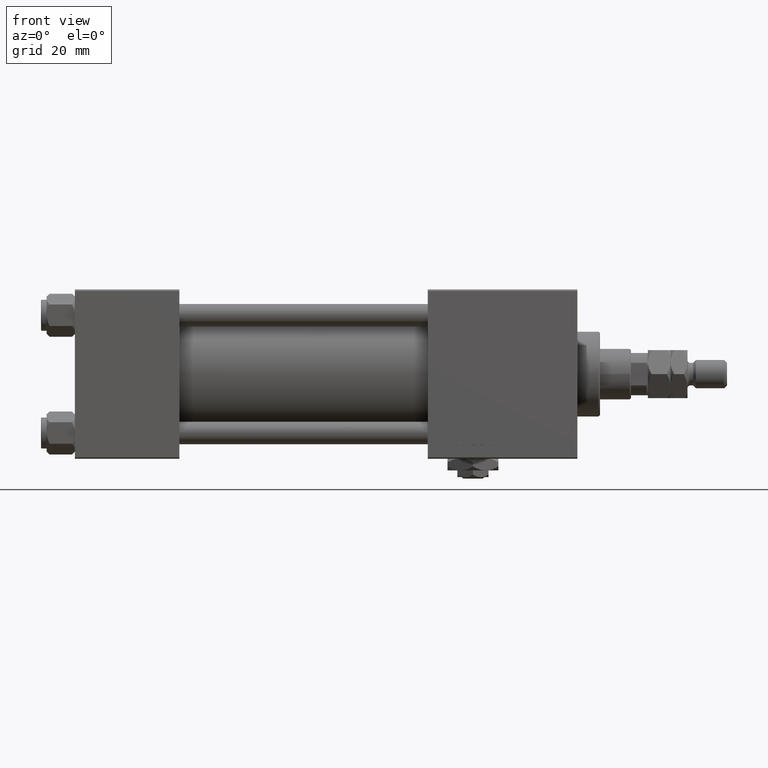
[diagram: clean part render]
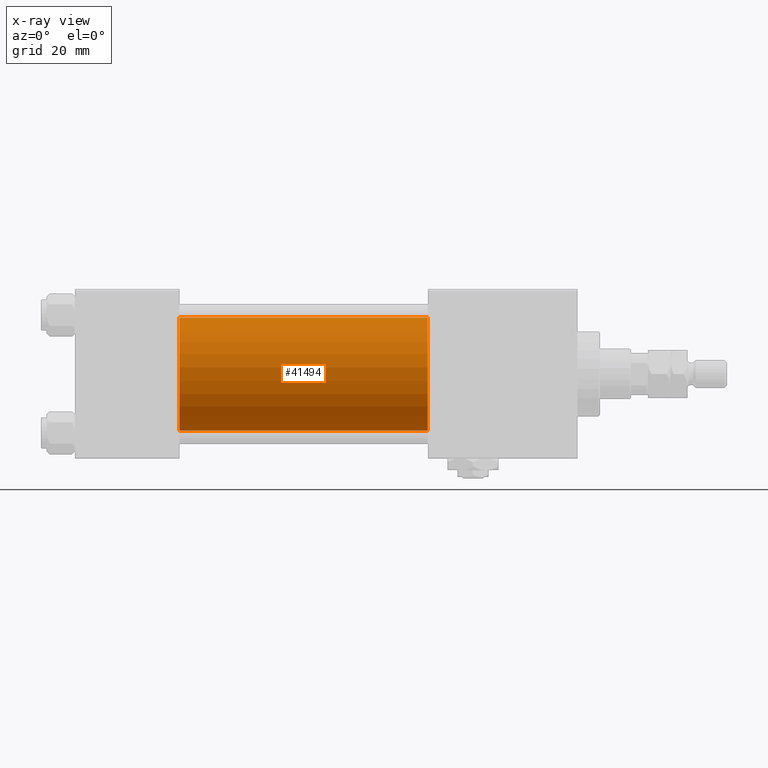
[diagram: x-ray — body ghosted, one internal face saturated and labeled with its STEP entity id]
A machine part, front view, then the same camera in x-ray: the body is ghosted and one INTERNAL B-rep face — a face not visible from any outside direction — is saturated and labeled: STEP entity #41494.
In plain terms, the highlighted cylindrical surface (partial cylindrical patch) has radius 20 mm, axis along (-1, -0, -0).
Its self-contained STEP definition (entity closure, byte-faithful):
#86 = CARTESIAN_POINT ( 'NONE',  ( 37.00000000000000000, -2.602085213965210642E-15, 20.00000000000000000 ) ) ;
#213 = EDGE_CURVE ( 'NONE', #16477, #53492, #29205, .T. ) ;
#674 = FACE_OUTER_BOUND ( 'NONE', #44099, .T. ) ;
#2368 = DIRECTION ( 'NONE',  ( 0.000000000000000000, 0.000000000000000000, -1.000000000000000000 ) ) ;
#3436 = DIRECTION ( 'NONE',  ( 1.000000000000000000, 0.000000000000000000, 0.000000000000000000 ) ) ;
#4060 = DIRECTION ( 'NONE',  ( -1.000000000000000000, -0.000000000000000000, -0.000000000000000000 ) ) ;
#5092 = VECTOR ( 'NONE', #14815, 1000.000000000000000 ) ;
#6915 = VERTEX_POINT ( 'NONE', #13218 ) ;
#9227 = VECTOR ( 'NONE', #4060, 1000.000000000000000 ) ;
#9318 = ORIENTED_EDGE ( 'NONE', *, *, #34437, .F. ) ;
#9572 = CIRCLE ( 'NONE', #17341, 20.00000000000000000 ) ;
#12014 = LINE ( 'NONE', #15078, #5092 ) ;
#13218 = CARTESIAN_POINT ( 'NONE',  ( 37.00000000000000000, -1.527916156705042519E-16, -20.00000000000000000 ) ) ;
#13400 = CIRCLE ( 'NONE', #39312, 20.00000000000000000 ) ;
#14815 = DIRECTION ( 'NONE',  ( -1.000000000000000000, -0.000000000000000000, -0.000000000000000000 ) ) ;
#15078 = CARTESIAN_POINT ( 'NONE',  ( 125.0000000000000000, -1.527916156705042519E-16, -20.00000000000000000 ) ) ;
#16477 = VERTEX_POINT ( 'NONE', #48713 ) ;
#16976 = EDGE_CURVE ( 'NONE', #47905, #6915, #12014, .T. ) ;
#17341 = AXIS2_PLACEMENT_3D ( 'NONE', #40363, #40903, #37099 ) ;
#20288 = EDGE_CURVE ( 'NONE', #16477, #47905, #9572, .T. ) ;
#20999 = CYLINDRICAL_SURFACE ( 'NONE', #29455, 20.00000000000000000 ) ;
#21139 = CARTESIAN_POINT ( 'NONE',  ( 125.0000000000000000, -1.527916156705042519E-16, -20.00000000000000000 ) ) ;
#22698 = ORIENTED_EDGE ( 'NONE', *, *, #213, .F. ) ;
#25604 = ORIENTED_EDGE ( 'NONE', *, *, #16976, .T. ) ;
#28309 = DIRECTION ( 'NONE',  ( 0.000000000000000000, 0.000000000000000000, 1.000000000000000000 ) ) ;
#28675 = CARTESIAN_POINT ( 'NONE',  ( 125.0000000000000000, -2.602085213965210642E-15, 20.00000000000000000 ) ) ;
#29205 = LINE ( 'NONE', #28675, #9227 ) ;
#29455 = AXIS2_PLACEMENT_3D ( 'NONE', #33181, #33691, #28309 ) ;
#33181 = CARTESIAN_POINT ( 'NONE',  ( 125.0000000000000000, -2.602085213965210642E-15, 0.000000000000000000 ) ) ;
#33691 = DIRECTION ( 'NONE',  ( -1.000000000000000000, -0.000000000000000000, -0.000000000000000000 ) ) ;
#34437 = EDGE_CURVE ( 'NONE', #53492, #6915, #13400, .T. ) ;
#37099 = DIRECTION ( 'NONE',  ( 0.000000000000000000, 0.000000000000000000, -1.000000000000000000 ) ) ;
#39312 = AXIS2_PLACEMENT_3D ( 'NONE', #39430, #3436, #2368 ) ;
#39430 = CARTESIAN_POINT ( 'NONE',  ( 37.00000000000000000, -2.602085213965210642E-15, 0.000000000000000000 ) ) ;
#40363 = CARTESIAN_POINT ( 'NONE',  ( 125.0000000000000000, -2.602085213965210642E-15, 0.000000000000000000 ) ) ;
#40903 = DIRECTION ( 'NONE',  ( 1.000000000000000000, 0.000000000000000000, 0.000000000000000000 ) ) ;
#41494 = ADVANCED_FACE ( 'NONE', ( #674 ), #20999, .F. ) ;
#44099 = EDGE_LOOP ( 'NONE', ( #52905, #25604, #9318, #22698 ) ) ;
#47905 = VERTEX_POINT ( 'NONE', #21139 ) ;
#48713 = CARTESIAN_POINT ( 'NONE',  ( 125.0000000000000000, -2.602085213965210642E-15, 20.00000000000000000 ) ) ;
#52905 = ORIENTED_EDGE ( 'NONE', *, *, #20288, .T. ) ;
#53492 = VERTEX_POINT ( 'NONE', #86 ) ;